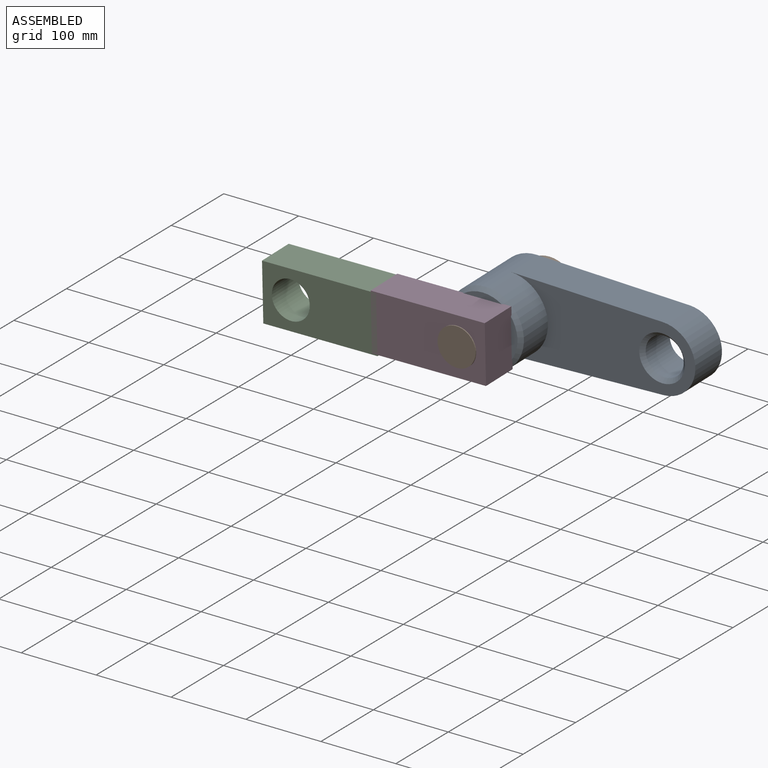
[diagram: assembled view]
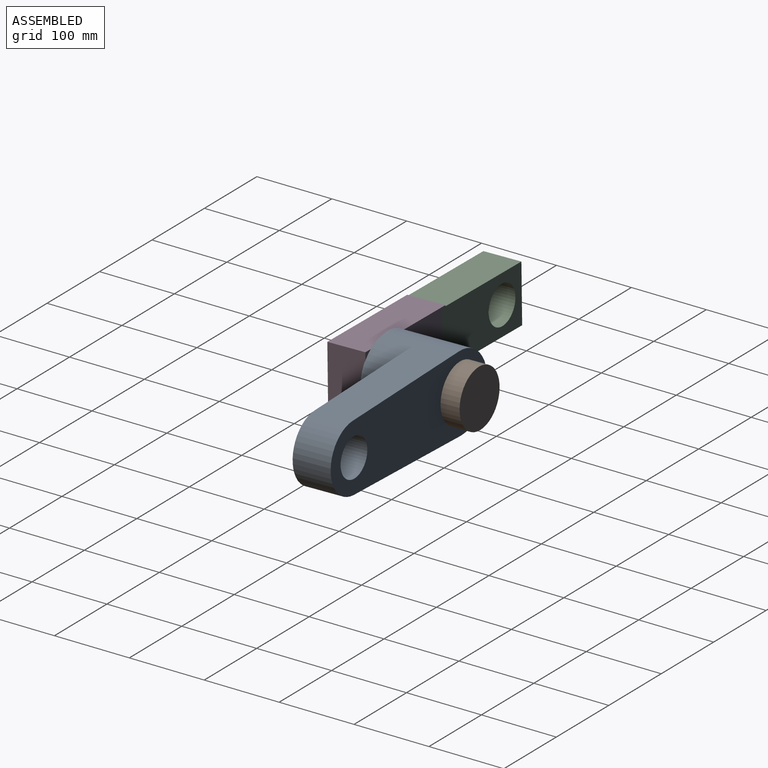
[diagram: assembled view, second angle]
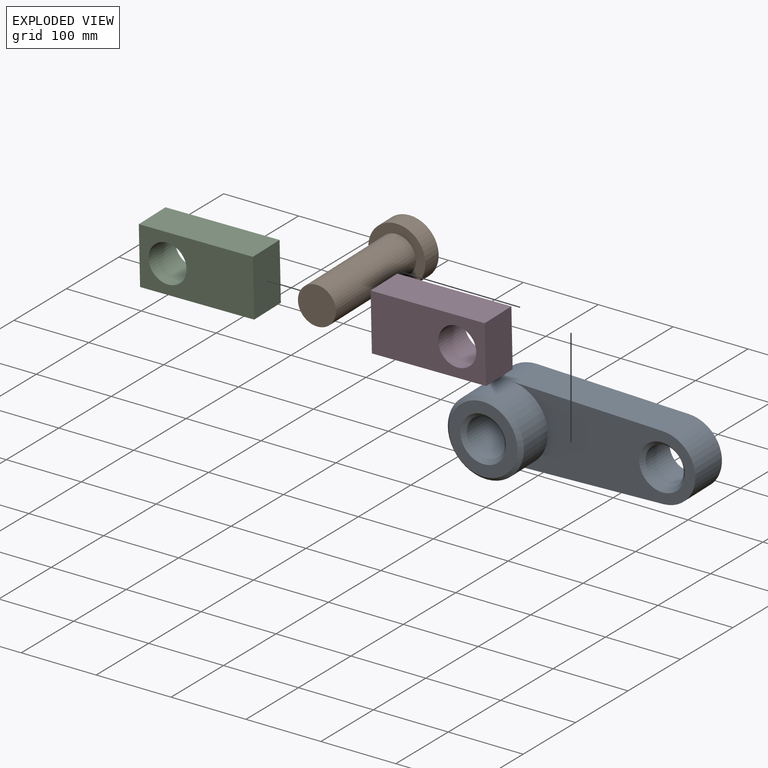
[diagram: exploded view]
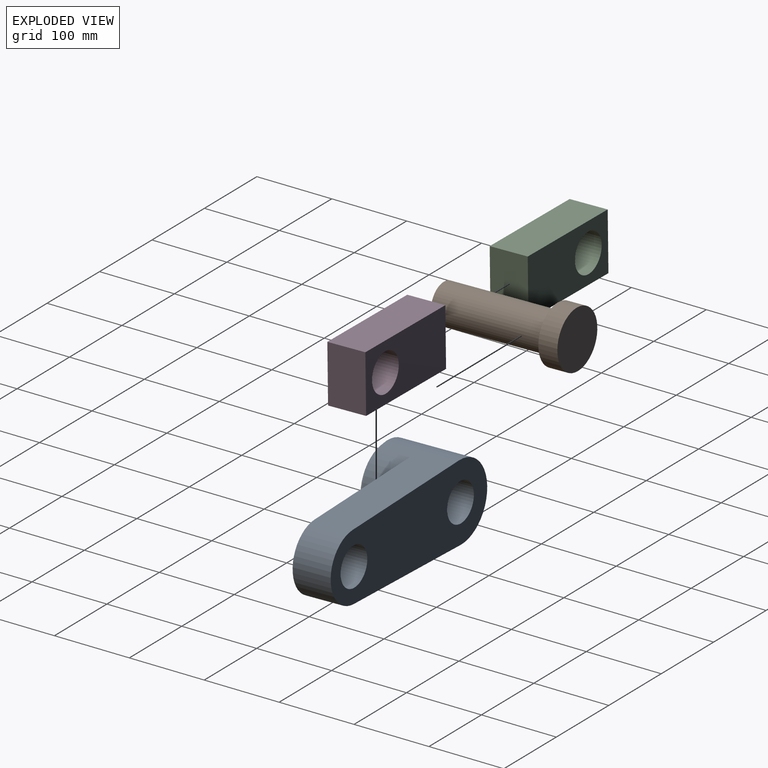
[diagram: exploded view, second angle]
ASSEMBLY  parts=4 mates=3
PART A: 12 faces, bbox 298.5x101.6x101.6 mm
  f0: plane 246.06x101.55mm, normal (0,-1,0), area 15495.5mm2, adj f1,f2,f3,f4,f9
  f1: cylinder r=50.8mm len=101.6mm, axis (0,1,0), area 22861.8mm2, adj f0,f2,f4,f7,f10
  f2: plane 203x50.8mm, normal (0.03,0,-1), area 10317.5mm2, adj f0,f1,f3,f7
  f3: cylinder r=44.45mm len=88.86mm, axis (0,1,0), area 6952.8mm2, adj f0,f2,f4,f7
  f4: plane 203x50.8mm, normal (0.03,0,1), area 10317.5mm2, adj f0,f1,f3,f7
  f5: cylinder r=25.4mm len=96.52mm, axis (0,1,0), area 15403.9mm2, adj f7,f11
  f6: cylinder r=25.4mm len=50.8mm, axis (0,1,0), area 7296.6mm2, adj f7,f9
  f7: plane 298.45x101.6mm, normal (0,1,0), area 22467.8mm2, adj f1,f2,f3,f4,f5,f6
  f8: plane 91.44x91.44mm, normal (0,-1,0), area 3648.3mm2, adj f10,f11
  f9: cone r=25.4mm half-angle=45deg, axis (0,-1,0), area 1261.2mm2, adj f0,f6
  f10: cone r=45.72mm half-angle=45deg, axis (0,1,0), area 2178.4mm2, adj f1,f8
  f11: cone r=25.4mm half-angle=45deg, axis (0,-1,0), area 1261.2mm2, adj f5,f8
PART B: 5 faces, bbox 76.2x177.8x76.2 mm
  f0: cylinder r=25.4mm len=152.4mm, axis (0,1,0), area 24322mm2, adj f1,f4
  f1: plane 50.8x50.8mm, normal (0,-1,0), area 2026.8mm2, adj f0
  f2: cylinder r=38.1mm len=76.2mm, axis (0,-1,0), area 6080.5mm2, adj f3,f4
  f3: plane 76.2x76.2mm, normal (0,1,0), area 4560.4mm2, adj f2
  f4: plane 76.2x76.2mm, normal (0,-1,0), area 2533.5mm2, adj f0,f2
PART C: 7 faces, bbox 76.2x50.8x152.4 mm
  f0: plane 76.2x50.8mm, normal (0,0,-1), area 3871mm2, adj f1,f3,f5,f6
  f1: plane 152.4x50.8mm, normal (1,0,0), area 7741.9mm2, adj f0,f2,f5,f6
  f2: plane 76.2x50.8mm, normal (0,0,1), area 3871mm2, adj f1,f3,f5,f6
  f3: plane 152.4x50.8mm, normal (-1,0,0), area 7741.9mm2, adj f0,f2,f5,f6
  f4: cylinder r=25.4mm len=50.8mm, axis (0,1,0), area 8107.3mm2, adj f5,f6
  f5: plane 152.4x76.2mm, normal (0,-1,0), area 9586.1mm2, adj f0,f1,f2,f3,f4
  f6: plane 152.4x76.2mm, normal (0,1,0), area 9586.1mm2, adj f0,f1,f2,f3,f4
PART D: same geometry as C
PLACE A rot(axis=(1,0,0),1.1deg) t=(-130.75,-59.35,-171.21)mm
PLACE B rot(axis=(1,0,0),1.1deg) t=(-130.75,-59.35,-171.21)mm
PLACE C rot(axis=(0.01,-1,-0.01),90.5deg) t=(-312.14,-159.58,-176.17)mm
PLACE D rot(axis=(-0.7,0.01,-0.71),179.2deg) t=(-171.62,-210.42,-174.5)mm
MATE cylindrical A.f5 <-> B.f0  axis (0,1,0.02) through (-130.75,-59.35,-171.21)mm
MATE cylindrical D.f4 <-> B.f0  axis (0,1,0.02) through (-130.75,-159.64,-173.15)mm
MATE parallel C.f0 <-> D.f0  axis (1,0,0.01) through (-238.17,-184.99,-176)mm
